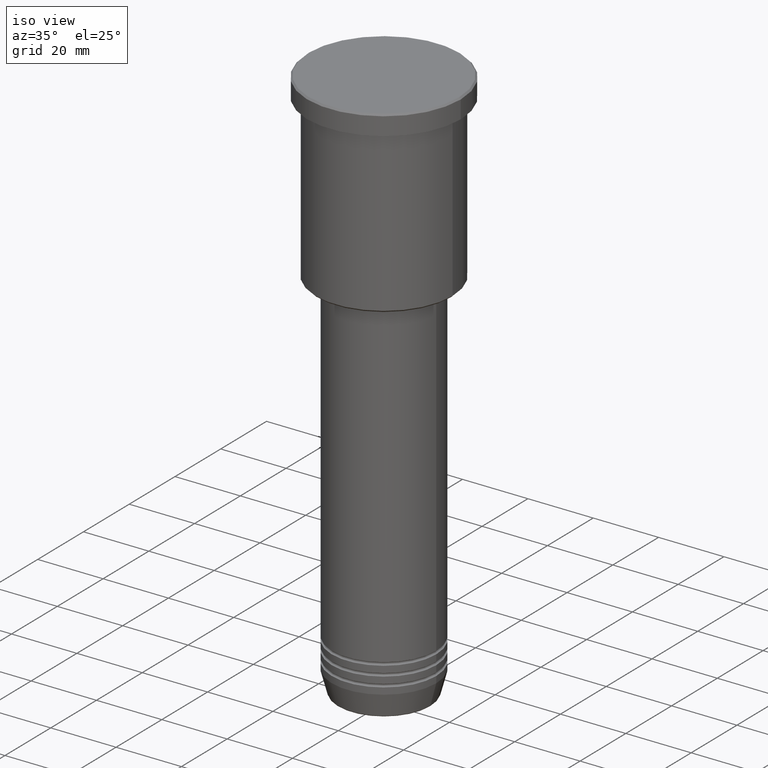
[diagram: clean part render]
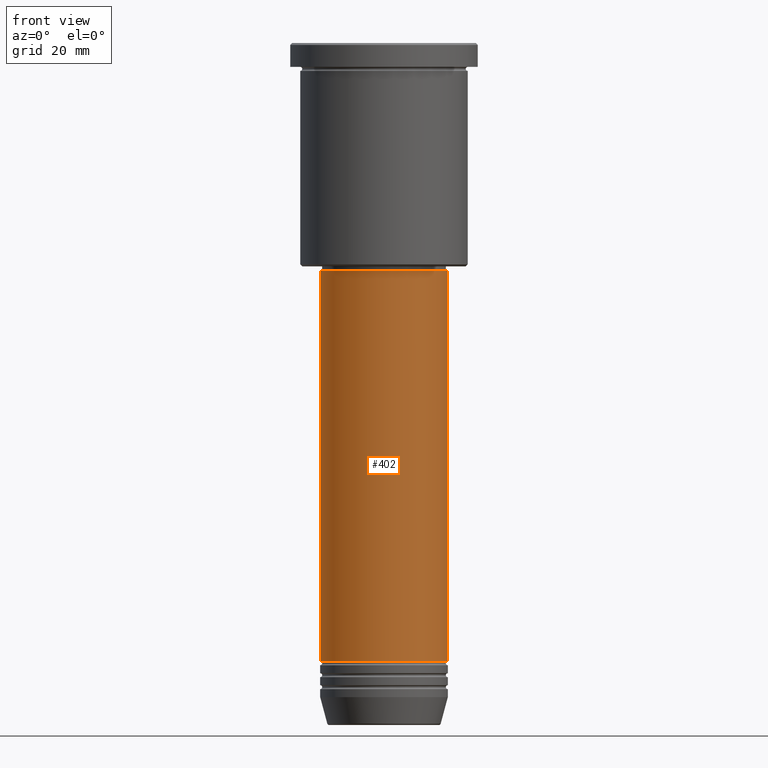
[diagram: tour spotlight — one face highlighted and labeled with its STEP entity id]
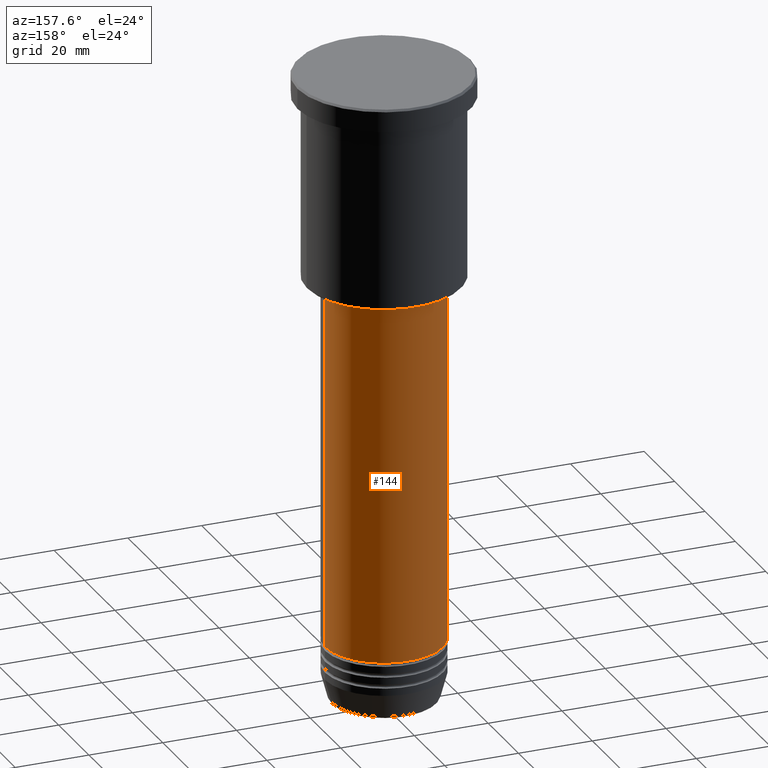
[diagram: tour spotlight — one face highlighted and labeled with its STEP entity id]
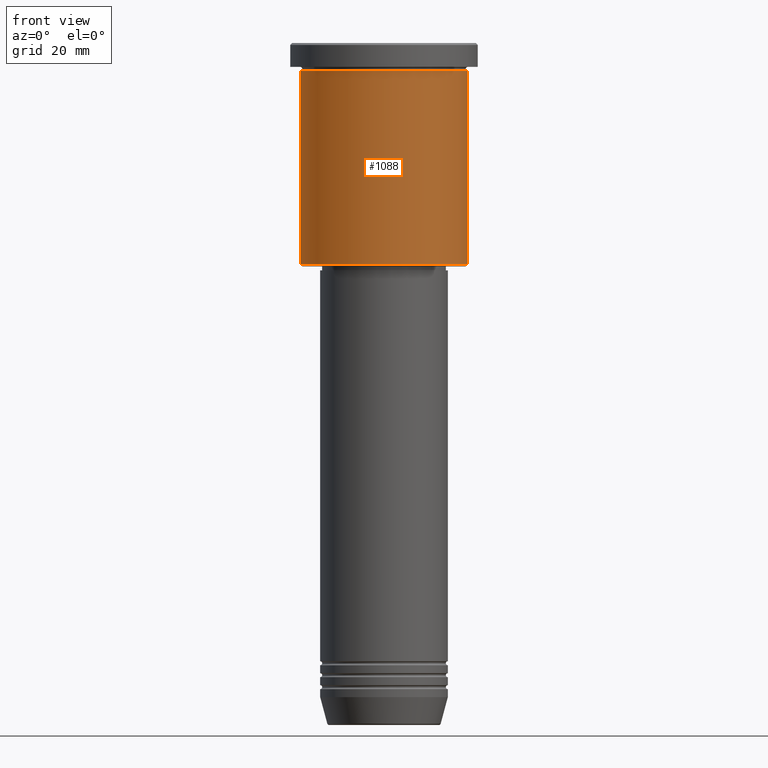
[diagram: tour spotlight — one face highlighted and labeled with its STEP entity id]
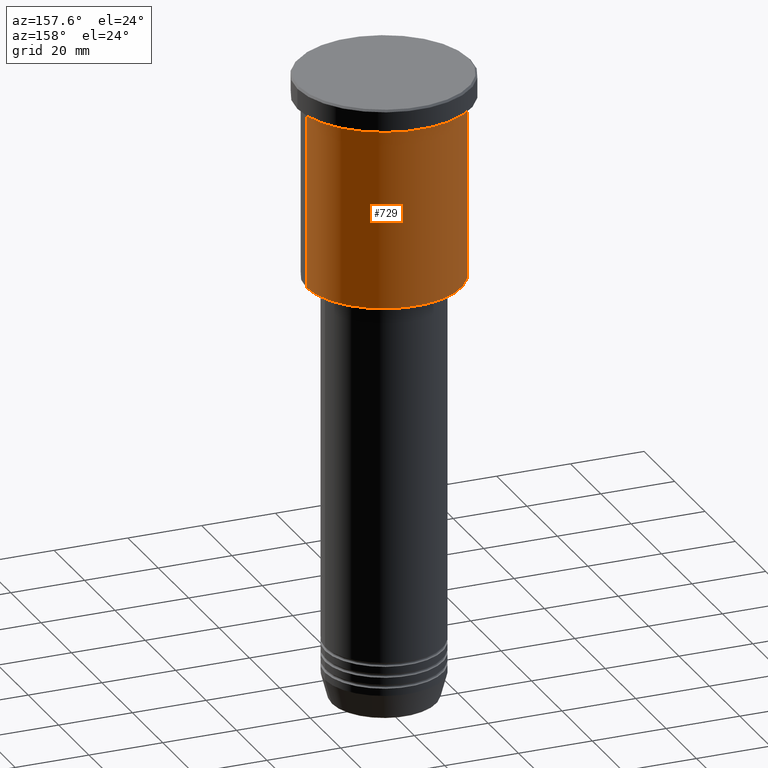
[diagram: tour spotlight — one face highlighted and labeled with its STEP entity id]
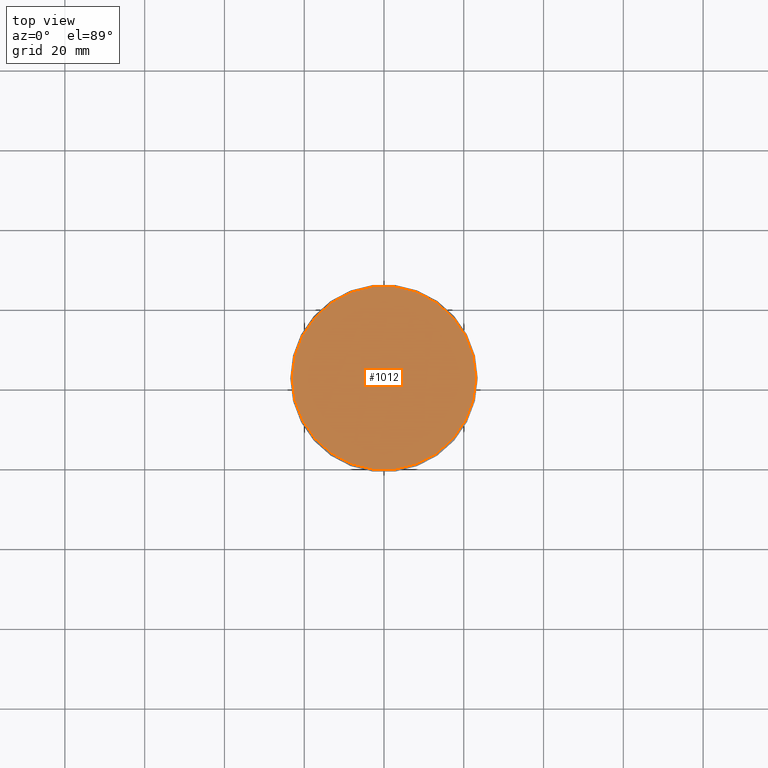
[diagram: tour spotlight — one face highlighted and labeled with its STEP entity id]
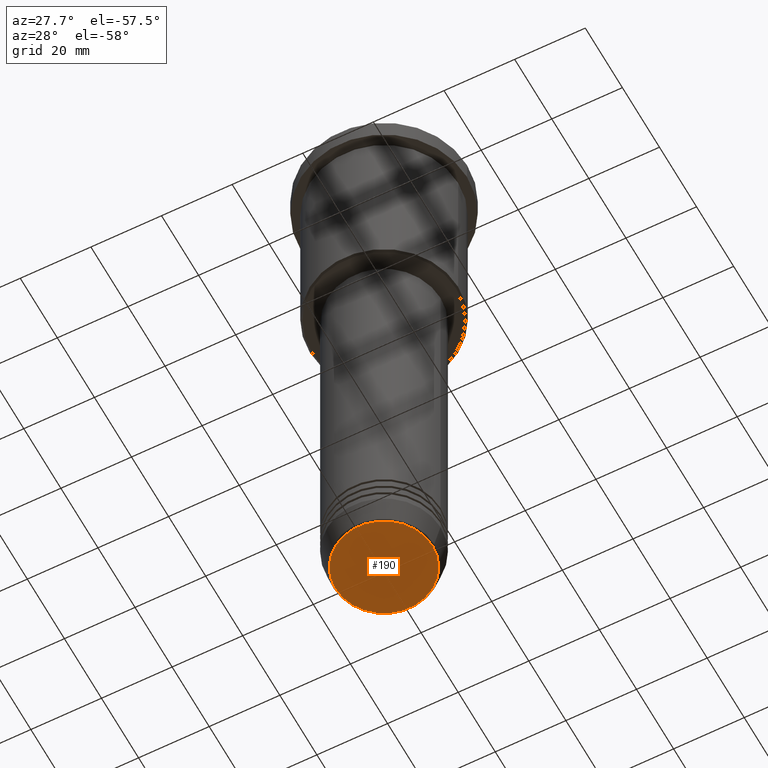
[diagram: tour spotlight — one face highlighted and labeled with its STEP entity id]
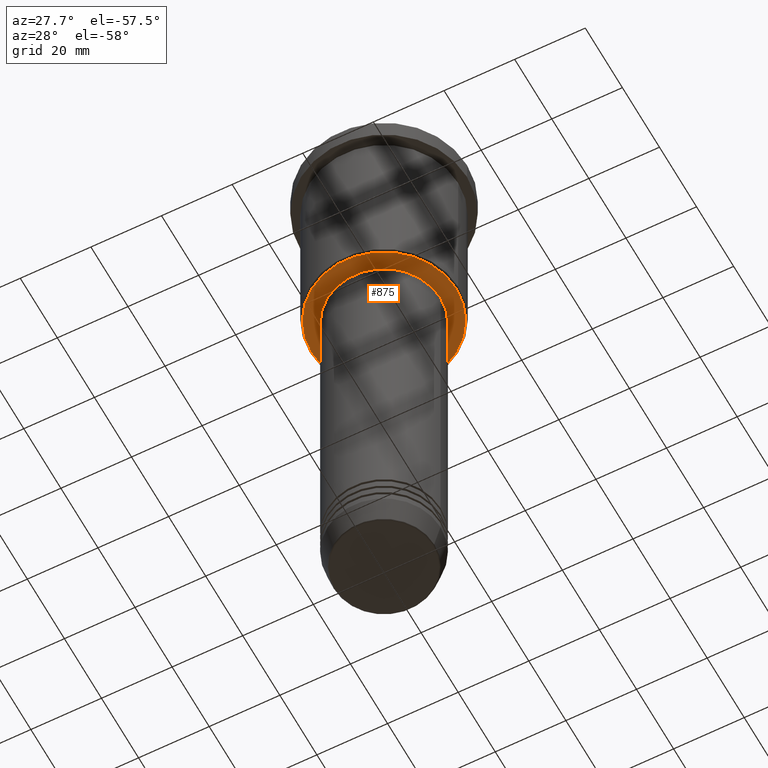
[diagram: tour spotlight — one face highlighted and labeled with its STEP entity id]
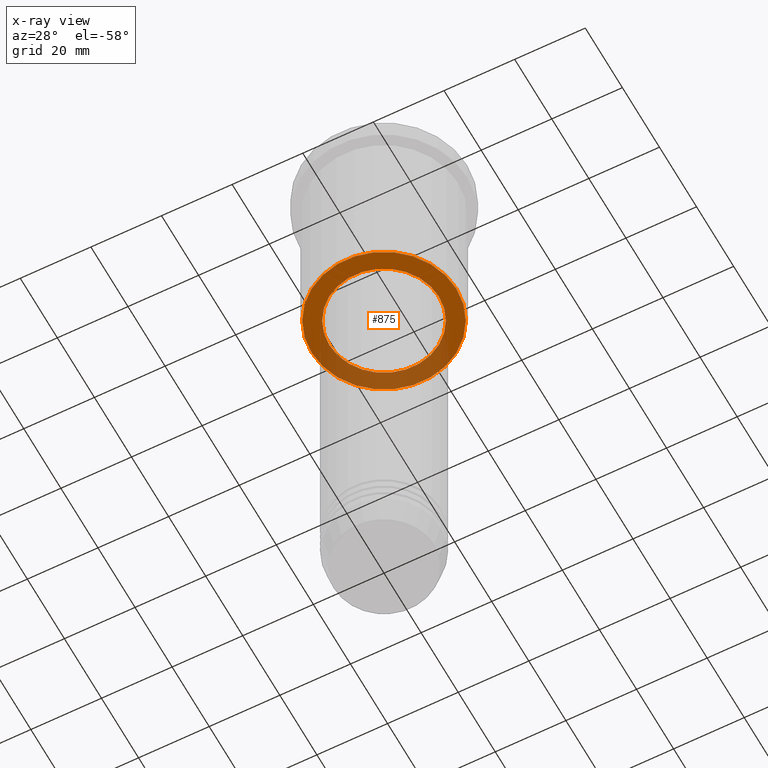
[diagram: x-ray of the same camera — body ghosted, this tour face saturated]
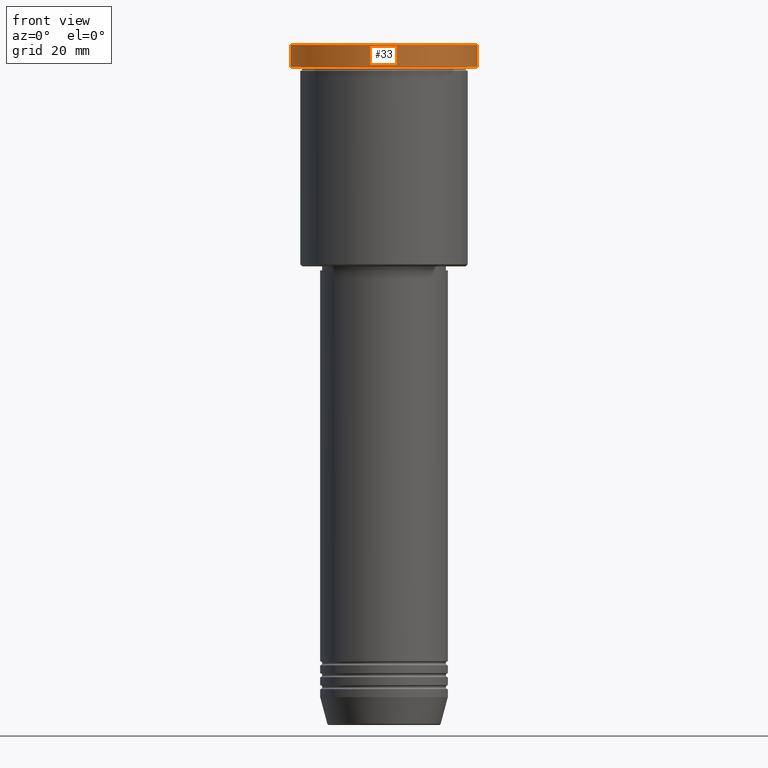
[diagram: tour spotlight — one face highlighted and labeled with its STEP entity id]
A machine part: a face-by-face anatomy tour. The part has 43 B-rep faces; the first image is the clean iso view, then the 8 largest visible faces are spotlighted one at a time (largest first), each with its STEP entity span.

Face 1 — front view, entity #402. In plain terms, the highlighted cylindrical surface (partial cylindrical patch) has radius 16 mm, axis along (-0, -0, 1).
Definition (entity closure, byte-faithful):
#9 = DIRECTION ( 'NONE',  ( -0.000000000000000000, -0.000000000000000000, 1.000000000000000000 ) ) ;
#23 = CARTESIAN_POINT ( 'NONE',  ( 16.00000000000000000, 0.000000000000000000, 0.000000000000000000 ) ) ;
#38 = VERTEX_POINT ( 'NONE', #364 ) ;
#44 = CIRCLE ( 'NONE', #1141, 16.00000000000000000 ) ;
#86 = EDGE_CURVE ( 'NONE', #415, #38, #1036, .T. ) ;
#89 = DIRECTION ( 'NONE',  ( -0.000000000000000000, -0.000000000000000000, 1.000000000000000000 ) ) ;
#117 = EDGE_CURVE ( 'NONE', #169, #38, #394, .T. ) ;
#169 = VERTEX_POINT ( 'NONE', #960 ) ;
#193 = FACE_OUTER_BOUND ( 'NONE', #848, .T. ) ;
#229 = LINE ( 'NONE', #593, #985 ) ;
#288 = ORIENTED_EDGE ( 'NONE', *, *, #442, .F. ) ;
#311 = AXIS2_PLACEMENT_3D ( 'NONE', #633, #89, #453 ) ;
#326 = EDGE_CURVE ( 'NONE', #1001, #169, #44, .T. ) ;
#347 = ORIENTED_EDGE ( 'NONE', *, *, #117, .T. ) ;
#364 = CARTESIAN_POINT ( 'NONE',  ( 16.00000000000000000, 0.000000000000000000, -57.00000000000000000 ) ) ;
#377 = CARTESIAN_POINT ( 'NONE',  ( 0.000000000000000000, 0.000000000000000000, -57.00000000000000000 ) ) ;
#384 = CARTESIAN_POINT ( 'NONE',  ( 0.000000000000000000, 0.000000000000000000, -154.9999999999999716 ) ) ;
#394 = LINE ( 'NONE', #23, #628 ) ;
#402 = ADVANCED_FACE ( 'NONE', ( #193 ), #553, .T. ) ;
#414 = DIRECTION ( 'NONE',  ( 1.000000000000000000, 0.000000000000000000, 0.000000000000000000 ) ) ;
#415 = VERTEX_POINT ( 'NONE', #465 ) ;
#442 = EDGE_CURVE ( 'NONE', #1001, #415, #229, .T. ) ;
#453 = DIRECTION ( 'NONE',  ( 1.000000000000000000, 0.000000000000000000, 0.000000000000000000 ) ) ;
#465 = CARTESIAN_POINT ( 'NONE',  ( -16.00000000000000000, 1.959434878635765131E-15, -57.00000000000000000 ) ) ;
#551 = ORIENTED_EDGE ( 'NONE', *, *, #326, .T. ) ;
#553 = CYLINDRICAL_SURFACE ( 'NONE', #311, 16.00000000000000000 ) ;
#593 = CARTESIAN_POINT ( 'NONE',  ( -16.00000000000000000, 1.959434878635765131E-15, 0.000000000000000000 ) ) ;
#628 = VECTOR ( 'NONE', #943, 1000.000000000000000 ) ;
#633 = CARTESIAN_POINT ( 'NONE',  ( 0.000000000000000000, 0.000000000000000000, 0.000000000000000000 ) ) ;
#678 = DIRECTION ( 'NONE',  ( -0.000000000000000000, -0.000000000000000000, 1.000000000000000000 ) ) ;
#686 = ORIENTED_EDGE ( 'NONE', *, *, #86, .F. ) ;
#688 = CARTESIAN_POINT ( 'NONE',  ( -16.00000000000000000, 1.959434878635765131E-15, -154.9999999999999716 ) ) ;
#848 = EDGE_LOOP ( 'NONE', ( #288, #551, #347, #686 ) ) ;
#943 = DIRECTION ( 'NONE',  ( -0.000000000000000000, -0.000000000000000000, 1.000000000000000000 ) ) ;
#945 = DIRECTION ( 'NONE',  ( -0.000000000000000000, -0.000000000000000000, 1.000000000000000000 ) ) ;
#948 = AXIS2_PLACEMENT_3D ( 'NONE', #377, #945, #414 ) ;
#960 = CARTESIAN_POINT ( 'NONE',  ( 16.00000000000000000, 0.000000000000000000, -154.9999999999999716 ) ) ;
#985 = VECTOR ( 'NONE', #678, 1000.000000000000000 ) ;
#1001 = VERTEX_POINT ( 'NONE', #688 ) ;
#1036 = CIRCLE ( 'NONE', #948, 16.00000000000000000 ) ;
#1110 = DIRECTION ( 'NONE',  ( 1.000000000000000000, 0.000000000000000000, 0.000000000000000000 ) ) ;
#1141 = AXIS2_PLACEMENT_3D ( 'NONE', #384, #9, #1110 ) ;

Face 2 — auxiliary view, entity #144. In plain terms, the highlighted cylindrical surface (partial cylindrical patch) has radius 16 mm, axis along (-0, -0, 1).
Definition (entity closure, byte-faithful):
#23 = CARTESIAN_POINT ( 'NONE',  ( 16.00000000000000000, 0.000000000000000000, 0.000000000000000000 ) ) ;
#38 = VERTEX_POINT ( 'NONE', #364 ) ;
#75 = FACE_OUTER_BOUND ( 'NONE', #266, .T. ) ;
#117 = EDGE_CURVE ( 'NONE', #169, #38, #394, .T. ) ;
#144 = ADVANCED_FACE ( 'NONE', ( #75 ), #625, .T. ) ;
#169 = VERTEX_POINT ( 'NONE', #960 ) ;
#186 = CARTESIAN_POINT ( 'NONE',  ( 0.000000000000000000, 0.000000000000000000, -57.00000000000000000 ) ) ;
#229 = LINE ( 'NONE', #593, #985 ) ;
#266 = EDGE_LOOP ( 'NONE', ( #680, #1137, #791, #1083 ) ) ;
#272 = DIRECTION ( 'NONE',  ( -0.000000000000000000, -0.000000000000000000, 1.000000000000000000 ) ) ;
#335 = AXIS2_PLACEMENT_3D ( 'NONE', #186, #1183, #365 ) ;
#352 = CARTESIAN_POINT ( 'NONE',  ( 0.000000000000000000, 0.000000000000000000, 0.000000000000000000 ) ) ;
#364 = CARTESIAN_POINT ( 'NONE',  ( 16.00000000000000000, 0.000000000000000000, -57.00000000000000000 ) ) ;
#365 = DIRECTION ( 'NONE',  ( 1.000000000000000000, 0.000000000000000000, 0.000000000000000000 ) ) ;
#393 = DIRECTION ( 'NONE',  ( -0.000000000000000000, -0.000000000000000000, 1.000000000000000000 ) ) ;
#394 = LINE ( 'NONE', #23, #628 ) ;
#415 = VERTEX_POINT ( 'NONE', #465 ) ;
#442 = EDGE_CURVE ( 'NONE', #1001, #415, #229, .T. ) ;
#465 = CARTESIAN_POINT ( 'NONE',  ( -16.00000000000000000, 1.959434878635765131E-15, -57.00000000000000000 ) ) ;
#556 = DIRECTION ( 'NONE',  ( 1.000000000000000000, 0.000000000000000000, 0.000000000000000000 ) ) ;
#593 = CARTESIAN_POINT ( 'NONE',  ( -16.00000000000000000, 1.959434878635765131E-15, 0.000000000000000000 ) ) ;
#623 = CIRCLE ( 'NONE', #335, 16.00000000000000000 ) ;
#625 = CYLINDRICAL_SURFACE ( 'NONE', #808, 16.00000000000000000 ) ;
#628 = VECTOR ( 'NONE', #943, 1000.000000000000000 ) ;
#649 = DIRECTION ( 'NONE',  ( 1.000000000000000000, 0.000000000000000000, 0.000000000000000000 ) ) ;
#678 = DIRECTION ( 'NONE',  ( -0.000000000000000000, -0.000000000000000000, 1.000000000000000000 ) ) ;
#680 = ORIENTED_EDGE ( 'NONE', *, *, #734, .T. ) ;
#688 = CARTESIAN_POINT ( 'NONE',  ( -16.00000000000000000, 1.959434878635765131E-15, -154.9999999999999716 ) ) ;
#734 = EDGE_CURVE ( 'NONE', #169, #1001, #1070, .T. ) ;
#791 = ORIENTED_EDGE ( 'NONE', *, *, #796, .F. ) ;
#796 = EDGE_CURVE ( 'NONE', #38, #415, #623, .T. ) ;
#808 = AXIS2_PLACEMENT_3D ( 'NONE', #352, #393, #649 ) ;
#943 = DIRECTION ( 'NONE',  ( -0.000000000000000000, -0.000000000000000000, 1.000000000000000000 ) ) ;
#960 = CARTESIAN_POINT ( 'NONE',  ( 16.00000000000000000, 0.000000000000000000, -154.9999999999999716 ) ) ;
#985 = VECTOR ( 'NONE', #678, 1000.000000000000000 ) ;
#999 = CARTESIAN_POINT ( 'NONE',  ( 0.000000000000000000, 0.000000000000000000, -154.9999999999999716 ) ) ;
#1001 = VERTEX_POINT ( 'NONE', #688 ) ;
#1028 = AXIS2_PLACEMENT_3D ( 'NONE', #999, #272, #556 ) ;
#1070 = CIRCLE ( 'NONE', #1028, 16.00000000000000000 ) ;
#1083 = ORIENTED_EDGE ( 'NONE', *, *, #117, .F. ) ;
#1137 = ORIENTED_EDGE ( 'NONE', *, *, #442, .T. ) ;
#1183 = DIRECTION ( 'NONE',  ( -0.000000000000000000, -0.000000000000000000, 1.000000000000000000 ) ) ;

Face 3 — front view, entity #1088. In plain terms, the highlighted cylindrical surface (partial cylindrical patch) has radius 21 mm, axis along (-0, -0, 1).
Definition (entity closure, byte-faithful):
#13 = ORIENTED_EDGE ( 'NONE', *, *, #182, .T. ) ;
#68 = CYLINDRICAL_SURFACE ( 'NONE', #406, 21.00000000000000000 ) ;
#70 = EDGE_CURVE ( 'NONE', #524, #534, #275, .T. ) ;
#72 = VECTOR ( 'NONE', #509, 1000.000000000000000 ) ;
#73 = LINE ( 'NONE', #146, #72 ) ;
#94 = DIRECTION ( 'NONE',  ( 1.000000000000000000, 0.000000000000000000, 0.000000000000000000 ) ) ;
#95 = ORIENTED_EDGE ( 'NONE', *, *, #70, .F. ) ;
#146 = CARTESIAN_POINT ( 'NONE',  ( 21.00000000000000000, 0.000000000000000000, 0.000000000000000000 ) ) ;
#159 = DIRECTION ( 'NONE',  ( -1.000000000000000000, 0.000000000000000000, 0.000000000000000000 ) ) ;
#182 = EDGE_CURVE ( 'NONE', #395, #534, #73, .T. ) ;
#252 = CARTESIAN_POINT ( 'NONE',  ( -21.00000000000000000, 2.571758278209441661E-15, 0.000000000000000000 ) ) ;
#263 = DIRECTION ( 'NONE',  ( 1.000000000000000000, 0.000000000000000000, 0.000000000000000000 ) ) ;
#269 = AXIS2_PLACEMENT_3D ( 'NONE', #973, #902, #159 ) ;
#275 = CIRCLE ( 'NONE', #466, 21.00000000000000000 ) ;
#337 = CARTESIAN_POINT ( 'NONE',  ( -21.00000000000000000, 2.571758278209441661E-15, -55.49999999999996447 ) ) ;
#388 = VECTOR ( 'NONE', #1160, 1000.000000000000000 ) ;
#395 = VERTEX_POINT ( 'NONE', #648 ) ;
#406 = AXIS2_PLACEMENT_3D ( 'NONE', #1154, #693, #263 ) ;
#466 = AXIS2_PLACEMENT_3D ( 'NONE', #750, #820, #94 ) ;
#509 = DIRECTION ( 'NONE',  ( -0.000000000000000000, -0.000000000000000000, 1.000000000000000000 ) ) ;
#524 = VERTEX_POINT ( 'NONE', #1121 ) ;
#534 = VERTEX_POINT ( 'NONE', #770 ) ;
#564 = VERTEX_POINT ( 'NONE', #337 ) ;
#605 = ORIENTED_EDGE ( 'NONE', *, *, #1119, .F. ) ;
#648 = CARTESIAN_POINT ( 'NONE',  ( 21.00000000000000000, 0.000000000000000000, -55.49999999999996447 ) ) ;
#676 = EDGE_CURVE ( 'NONE', #564, #395, #838, .T. ) ;
#693 = DIRECTION ( 'NONE',  ( -0.000000000000000000, -0.000000000000000000, 1.000000000000000000 ) ) ;
#705 = EDGE_LOOP ( 'NONE', ( #605, #709, #13, #95 ) ) ;
#709 = ORIENTED_EDGE ( 'NONE', *, *, #676, .T. ) ;
#750 = CARTESIAN_POINT ( 'NONE',  ( 0.000000000000000000, 0.000000000000000000, -6.999999999999994671 ) ) ;
#770 = CARTESIAN_POINT ( 'NONE',  ( 21.00000000000000000, 0.000000000000000000, -6.999999999999994671 ) ) ;
#820 = DIRECTION ( 'NONE',  ( -0.000000000000000000, -0.000000000000000000, 1.000000000000000000 ) ) ;
#838 = CIRCLE ( 'NONE', #269, 21.00000000000000000 ) ;
#902 = DIRECTION ( 'NONE',  ( -0.000000000000000000, -0.000000000000000000, 1.000000000000000000 ) ) ;
#973 = CARTESIAN_POINT ( 'NONE',  ( 0.000000000000000000, 0.000000000000000000, -55.49999999999996447 ) ) ;
#984 = LINE ( 'NONE', #252, #388 ) ;
#1076 = FACE_OUTER_BOUND ( 'NONE', #705, .T. ) ;
#1088 = ADVANCED_FACE ( 'NONE', ( #1076 ), #68, .T. ) ;
#1119 = EDGE_CURVE ( 'NONE', #564, #524, #984, .T. ) ;
#1121 = CARTESIAN_POINT ( 'NONE',  ( -21.00000000000000000, 2.571758278209441661E-15, -6.999999999999994671 ) ) ;
#1154 = CARTESIAN_POINT ( 'NONE',  ( 0.000000000000000000, 0.000000000000000000, 0.000000000000000000 ) ) ;
#1160 = DIRECTION ( 'NONE',  ( -0.000000000000000000, -0.000000000000000000, 1.000000000000000000 ) ) ;

Face 4 — auxiliary view, entity #729. In plain terms, the highlighted cylindrical surface (partial cylindrical patch) has radius 21 mm, axis along (-0, -0, 1).
Definition (entity closure, byte-faithful):
#72 = VECTOR ( 'NONE', #509, 1000.000000000000000 ) ;
#73 = LINE ( 'NONE', #146, #72 ) ;
#87 = DIRECTION ( 'NONE',  ( 1.000000000000000000, 0.000000000000000000, 0.000000000000000000 ) ) ;
#98 = AXIS2_PLACEMENT_3D ( 'NONE', #363, #715, #126 ) ;
#126 = DIRECTION ( 'NONE',  ( -1.000000000000000000, 0.000000000000000000, 0.000000000000000000 ) ) ;
#146 = CARTESIAN_POINT ( 'NONE',  ( 21.00000000000000000, 0.000000000000000000, 0.000000000000000000 ) ) ;
#167 = FACE_OUTER_BOUND ( 'NONE', #1089, .T. ) ;
#182 = EDGE_CURVE ( 'NONE', #395, #534, #73, .T. ) ;
#217 = AXIS2_PLACEMENT_3D ( 'NONE', #889, #803, #1078 ) ;
#252 = CARTESIAN_POINT ( 'NONE',  ( -21.00000000000000000, 2.571758278209441661E-15, 0.000000000000000000 ) ) ;
#285 = ORIENTED_EDGE ( 'NONE', *, *, #606, .F. ) ;
#337 = CARTESIAN_POINT ( 'NONE',  ( -21.00000000000000000, 2.571758278209441661E-15, -55.49999999999996447 ) ) ;
#363 = CARTESIAN_POINT ( 'NONE',  ( 0.000000000000000000, 0.000000000000000000, -55.49999999999996447 ) ) ;
#388 = VECTOR ( 'NONE', #1160, 1000.000000000000000 ) ;
#395 = VERTEX_POINT ( 'NONE', #648 ) ;
#400 = ORIENTED_EDGE ( 'NONE', *, *, #182, .F. ) ;
#462 = DIRECTION ( 'NONE',  ( -0.000000000000000000, -0.000000000000000000, 1.000000000000000000 ) ) ;
#468 = CYLINDRICAL_SURFACE ( 'NONE', #697, 21.00000000000000000 ) ;
#509 = DIRECTION ( 'NONE',  ( -0.000000000000000000, -0.000000000000000000, 1.000000000000000000 ) ) ;
#524 = VERTEX_POINT ( 'NONE', #1121 ) ;
#534 = VERTEX_POINT ( 'NONE', #770 ) ;
#564 = VERTEX_POINT ( 'NONE', #337 ) ;
#606 = EDGE_CURVE ( 'NONE', #534, #524, #723, .T. ) ;
#648 = CARTESIAN_POINT ( 'NONE',  ( 21.00000000000000000, 0.000000000000000000, -55.49999999999996447 ) ) ;
#697 = AXIS2_PLACEMENT_3D ( 'NONE', #1094, #462, #87 ) ;
#715 = DIRECTION ( 'NONE',  ( -0.000000000000000000, -0.000000000000000000, 1.000000000000000000 ) ) ;
#723 = CIRCLE ( 'NONE', #217, 21.00000000000000000 ) ;
#729 = ADVANCED_FACE ( 'NONE', ( #167 ), #468, .T. ) ;
#770 = CARTESIAN_POINT ( 'NONE',  ( 21.00000000000000000, 0.000000000000000000, -6.999999999999994671 ) ) ;
#777 = ORIENTED_EDGE ( 'NONE', *, *, #1155, .T. ) ;
#803 = DIRECTION ( 'NONE',  ( -0.000000000000000000, -0.000000000000000000, 1.000000000000000000 ) ) ;
#889 = CARTESIAN_POINT ( 'NONE',  ( 0.000000000000000000, 0.000000000000000000, -6.999999999999994671 ) ) ;
#984 = LINE ( 'NONE', #252, #388 ) ;
#989 = CIRCLE ( 'NONE', #98, 21.00000000000000000 ) ;
#1078 = DIRECTION ( 'NONE',  ( 1.000000000000000000, 0.000000000000000000, 0.000000000000000000 ) ) ;
#1089 = EDGE_LOOP ( 'NONE', ( #777, #1120, #285, #400 ) ) ;
#1094 = CARTESIAN_POINT ( 'NONE',  ( 0.000000000000000000, 0.000000000000000000, 0.000000000000000000 ) ) ;
#1119 = EDGE_CURVE ( 'NONE', #564, #524, #984, .T. ) ;
#1120 = ORIENTED_EDGE ( 'NONE', *, *, #1119, .T. ) ;
#1121 = CARTESIAN_POINT ( 'NONE',  ( -21.00000000000000000, 2.571758278209441661E-15, -6.999999999999994671 ) ) ;
#1155 = EDGE_CURVE ( 'NONE', #395, #564, #989, .T. ) ;
#1160 = DIRECTION ( 'NONE',  ( -0.000000000000000000, -0.000000000000000000, 1.000000000000000000 ) ) ;

Face 5 — top view, entity #1012. In plain terms, the highlighted planar face has unit normal (0, -0, 1).
Definition (entity closure, byte-faithful):
#45 = DIRECTION ( 'NONE',  ( 1.000000000000000000, 0.000000000000000000, 0.000000000000000000 ) ) ;
#83 = DIRECTION ( 'NONE',  ( 0.000000000000000000, -0.000000000000000000, 1.000000000000000000 ) ) ;
#154 = CARTESIAN_POINT ( 'NONE',  ( -22.99999999999999645, 0.000000000000000000, 0.000000000000000000 ) ) ;
#228 = DIRECTION ( 'NONE',  ( -0.000000000000000000, -0.000000000000000000, 1.000000000000000000 ) ) ;
#233 = EDGE_CURVE ( 'NONE', #257, #655, #260, .T. ) ;
#237 = AXIS2_PLACEMENT_3D ( 'NONE', #324, #228, #45 ) ;
#257 = VERTEX_POINT ( 'NONE', #732 ) ;
#260 = CIRCLE ( 'NONE', #300, 22.99999999999999645 ) ;
#300 = AXIS2_PLACEMENT_3D ( 'NONE', #1170, #703, #413 ) ;
#324 = CARTESIAN_POINT ( 'NONE',  ( 0.000000000000000000, 0.000000000000000000, 0.000000000000000000 ) ) ;
#339 = ORIENTED_EDGE ( 'NONE', *, *, #233, .T. ) ;
#354 = FACE_OUTER_BOUND ( 'NONE', #1143, .T. ) ;
#413 = DIRECTION ( 'NONE',  ( 1.000000000000000000, 0.000000000000000000, 0.000000000000000000 ) ) ;
#481 = AXIS2_PLACEMENT_3D ( 'NONE', #900, #83, #797 ) ;
#655 = VERTEX_POINT ( 'NONE', #154 ) ;
#703 = DIRECTION ( 'NONE',  ( -0.000000000000000000, -0.000000000000000000, 1.000000000000000000 ) ) ;
#719 = CIRCLE ( 'NONE', #237, 22.99999999999999645 ) ;
#732 = CARTESIAN_POINT ( 'NONE',  ( 22.99999999999999645, 2.847303808017596139E-15, 0.000000000000000000 ) ) ;
#788 = PLANE ( 'NONE',  #481 ) ;
#797 = DIRECTION ( 'NONE',  ( 1.000000000000000000, 0.000000000000000000, 0.000000000000000000 ) ) ;
#900 = CARTESIAN_POINT ( 'NONE',  ( 0.000000000000000000, 0.000000000000000000, 0.000000000000000000 ) ) ;
#920 = ORIENTED_EDGE ( 'NONE', *, *, #964, .T. ) ;
#964 = EDGE_CURVE ( 'NONE', #655, #257, #719, .T. ) ;
#1012 = ADVANCED_FACE ( 'NONE', ( #354 ), #788, .T. ) ;
#1143 = EDGE_LOOP ( 'NONE', ( #920, #339 ) ) ;
#1170 = CARTESIAN_POINT ( 'NONE',  ( 0.000000000000000000, 0.000000000000000000, 0.000000000000000000 ) ) ;

Face 6 — auxiliary view, entity #190. In plain terms, the highlighted planar face has unit normal (0, -0, 1).
Definition (entity closure, byte-faithful):
#7 = CARTESIAN_POINT ( 'NONE',  ( 0.000000000000000000, 0.000000000000000000, -170.9999999999999716 ) ) ;
#24 = CIRCLE ( 'NONE', #1151, 13.74069215899266538 ) ;
#62 = EDGE_CURVE ( 'NONE', #247, #482, #447, .T. ) ;
#104 = DIRECTION ( 'NONE',  ( 1.000000000000000000, 0.000000000000000000, 0.000000000000000000 ) ) ;
#190 = ADVANCED_FACE ( 'NONE', ( #769 ), #781, .F. ) ;
#219 = AXIS2_PLACEMENT_3D ( 'NONE', #1062, #1147, #226 ) ;
#222 = EDGE_LOOP ( 'NONE', ( #858, #238 ) ) ;
#226 = DIRECTION ( 'NONE',  ( 1.000000000000000000, 0.000000000000000000, 0.000000000000000000 ) ) ;
#238 = ORIENTED_EDGE ( 'NONE', *, *, #789, .T. ) ;
#247 = VERTEX_POINT ( 'NONE', #286 ) ;
#286 = CARTESIAN_POINT ( 'NONE',  ( 13.74069215899266538, 0.000000000000000000, -170.9999999999999716 ) ) ;
#297 = DIRECTION ( 'NONE',  ( 0.000000000000000000, 0.000000000000000000, -1.000000000000000000 ) ) ;
#375 = AXIS2_PLACEMENT_3D ( 'NONE', #847, #297, #104 ) ;
#447 = CIRCLE ( 'NONE', #375, 13.74069215899266538 ) ;
#482 = VERTEX_POINT ( 'NONE', #1027 ) ;
#769 = FACE_OUTER_BOUND ( 'NONE', #222, .T. ) ;
#781 = PLANE ( 'NONE',  #219 ) ;
#789 = EDGE_CURVE ( 'NONE', #482, #247, #24, .T. ) ;
#813 = DIRECTION ( 'NONE',  ( 1.000000000000000000, 0.000000000000000000, 0.000000000000000000 ) ) ;
#826 = DIRECTION ( 'NONE',  ( 0.000000000000000000, 0.000000000000000000, -1.000000000000000000 ) ) ;
#847 = CARTESIAN_POINT ( 'NONE',  ( 0.000000000000000000, 0.000000000000000000, -170.9999999999999716 ) ) ;
#858 = ORIENTED_EDGE ( 'NONE', *, *, #62, .T. ) ;
#1027 = CARTESIAN_POINT ( 'NONE',  ( -13.74069215899266538, 1.712322416342416577E-15, -170.9999999999999716 ) ) ;
#1062 = CARTESIAN_POINT ( 'NONE',  ( 0.000000000000000000, 0.000000000000000000, -170.9999999999999716 ) ) ;
#1147 = DIRECTION ( 'NONE',  ( 0.000000000000000000, -0.000000000000000000, 1.000000000000000000 ) ) ;
#1151 = AXIS2_PLACEMENT_3D ( 'NONE', #7, #826, #813 ) ;

Face 7 — auxiliary view, entity #875. An x-ray twin of the same camera follows (body ghosted, this face saturated) — the face is partly hidden behind the body. In plain terms, the highlighted planar face has unit normal (0, 0, -1).
Definition (entity closure, byte-faithful):
#41 = DIRECTION ( 'NONE',  ( 0.000000000000000000, 0.000000000000000000, -1.000000000000000000 ) ) ;
#46 = AXIS2_PLACEMENT_3D ( 'NONE', #522, #348, #1069 ) ;
#90 = EDGE_LOOP ( 'NONE', ( #1009, #301 ) ) ;
#135 = PLANE ( 'NONE',  #765 ) ;
#141 = CIRCLE ( 'NONE', #800, 15.50000000000000000 ) ;
#191 = DIRECTION ( 'NONE',  ( 0.000000000000000000, 0.000000000000000000, -1.000000000000000000 ) ) ;
#194 = AXIS2_PLACEMENT_3D ( 'NONE', #996, #191, #622 ) ;
#255 = CIRCLE ( 'NONE', #1004, 15.50000000000000000 ) ;
#282 = VERTEX_POINT ( 'NONE', #823 ) ;
#301 = ORIENTED_EDGE ( 'NONE', *, *, #717, .T. ) ;
#328 = CARTESIAN_POINT ( 'NONE',  ( 0.000000000000000000, 0.000000000000000000, -55.99999999999999289 ) ) ;
#348 = DIRECTION ( 'NONE',  ( 0.000000000000000000, 0.000000000000000000, -1.000000000000000000 ) ) ;
#369 = CIRCLE ( 'NONE', #194, 20.49999999999998934 ) ;
#486 = EDGE_LOOP ( 'NONE', ( #692, #1096 ) ) ;
#495 = DIRECTION ( 'NONE',  ( -0.000000000000000000, -0.000000000000000000, 1.000000000000000000 ) ) ;
#503 = DIRECTION ( 'NONE',  ( -0.000000000000000000, -0.000000000000000000, 1.000000000000000000 ) ) ;
#508 = DIRECTION ( 'NONE',  ( 1.000000000000000000, 0.000000000000000000, 0.000000000000000000 ) ) ;
#521 = CIRCLE ( 'NONE', #46, 20.49999999999998934 ) ;
#522 = CARTESIAN_POINT ( 'NONE',  ( 0.000000000000000000, 0.000000000000000000, -55.99999999999999289 ) ) ;
#526 = CARTESIAN_POINT ( 'NONE',  ( -15.50000000000000000, 1.898202538678397557E-15, -55.99999999999999289 ) ) ;
#587 = CARTESIAN_POINT ( 'NONE',  ( 0.000000000000000000, 21.00000000000000000, -55.99999999999999289 ) ) ;
#622 = DIRECTION ( 'NONE',  ( -1.000000000000000000, 0.000000000000000000, 0.000000000000000000 ) ) ;
#653 = CARTESIAN_POINT ( 'NONE',  ( 15.50000000000000000, 0.000000000000000000, -55.99999999999999289 ) ) ;
#675 = FACE_BOUND ( 'NONE', #486, .T. ) ;
#692 = ORIENTED_EDGE ( 'NONE', *, *, #908, .T. ) ;
#717 = EDGE_CURVE ( 'NONE', #983, #282, #521, .T. ) ;
#743 = EDGE_CURVE ( 'NONE', #282, #983, #369, .T. ) ;
#762 = DIRECTION ( 'NONE',  ( 1.000000000000000000, 0.000000000000000000, 0.000000000000000000 ) ) ;
#765 = AXIS2_PLACEMENT_3D ( 'NONE', #587, #41, #857 ) ;
#800 = AXIS2_PLACEMENT_3D ( 'NONE', #328, #503, #762 ) ;
#823 = CARTESIAN_POINT ( 'NONE',  ( 20.49999999999998934, 0.000000000000000000, -55.99999999999999289 ) ) ;
#850 = FACE_OUTER_BOUND ( 'NONE', #90, .T. ) ;
#857 = DIRECTION ( 'NONE',  ( -1.000000000000000000, 0.000000000000000000, -0.000000000000000000 ) ) ;
#875 = ADVANCED_FACE ( 'NONE', ( #850, #675 ), #135, .T. ) ;
#885 = VERTEX_POINT ( 'NONE', #653 ) ;
#898 = EDGE_CURVE ( 'NONE', #1038, #885, #255, .T. ) ;
#908 = EDGE_CURVE ( 'NONE', #885, #1038, #141, .T. ) ;
#936 = CARTESIAN_POINT ( 'NONE',  ( 0.000000000000000000, 0.000000000000000000, -55.99999999999999289 ) ) ;
#983 = VERTEX_POINT ( 'NONE', #1125 ) ;
#996 = CARTESIAN_POINT ( 'NONE',  ( 0.000000000000000000, 0.000000000000000000, -55.99999999999999289 ) ) ;
#1004 = AXIS2_PLACEMENT_3D ( 'NONE', #936, #495, #508 ) ;
#1009 = ORIENTED_EDGE ( 'NONE', *, *, #743, .T. ) ;
#1038 = VERTEX_POINT ( 'NONE', #526 ) ;
#1069 = DIRECTION ( 'NONE',  ( -1.000000000000000000, 0.000000000000000000, 0.000000000000000000 ) ) ;
#1096 = ORIENTED_EDGE ( 'NONE', *, *, #898, .T. ) ;
#1125 = CARTESIAN_POINT ( 'NONE',  ( -20.49999999999998934, 2.541142108230757480E-15, -55.99999999999999289 ) ) ;

Face 8 — front view, entity #33. In plain terms, the highlighted cylindrical surface (partial cylindrical patch) has radius 23.5 mm, axis along (-0, -0, 1).
Definition (entity closure, byte-faithful):
#33 = ADVANCED_FACE ( 'NONE', ( #329 ), #342, .T. ) ;
#36 = DIRECTION ( 'NONE',  ( -0.000000000000000000, -0.000000000000000000, 1.000000000000000000 ) ) ;
#60 = CARTESIAN_POINT ( 'NONE',  ( 23.50000000000000000, 0.000000000000000000, 0.000000000000000000 ) ) ;
#84 = CARTESIAN_POINT ( 'NONE',  ( 0.000000000000000000, 0.000000000000000000, -0.4999999999999726885 ) ) ;
#85 = VERTEX_POINT ( 'NONE', #463 ) ;
#91 = AXIS2_PLACEMENT_3D ( 'NONE', #397, #36, #1051 ) ;
#93 = DIRECTION ( 'NONE',  ( -0.000000000000000000, -0.000000000000000000, 1.000000000000000000 ) ) ;
#109 = CARTESIAN_POINT ( 'NONE',  ( 23.50000000000000000, 0.000000000000000000, -0.4999999999999726885 ) ) ;
#125 = LINE ( 'NONE', #60, #1000 ) ;
#153 = VERTEX_POINT ( 'NONE', #1150 ) ;
#231 = VERTEX_POINT ( 'NONE', #405 ) ;
#234 = CIRCLE ( 'NONE', #404, 23.50000000000000000 ) ;
#243 = AXIS2_PLACEMENT_3D ( 'NONE', #677, #794, #1068 ) ;
#251 = ORIENTED_EDGE ( 'NONE', *, *, #684, .T. ) ;
#329 = FACE_OUTER_BOUND ( 'NONE', #334, .T. ) ;
#334 = EDGE_LOOP ( 'NONE', ( #831, #1101, #935, #251 ) ) ;
#342 = CYLINDRICAL_SURFACE ( 'NONE', #243, 23.50000000000000000 ) ;
#353 = VERTEX_POINT ( 'NONE', #109 ) ;
#386 = VECTOR ( 'NONE', #93, 1000.000000000000000 ) ;
#397 = CARTESIAN_POINT ( 'NONE',  ( 0.000000000000000000, 0.000000000000000000, -5.999999999999994671 ) ) ;
#404 = AXIS2_PLACEMENT_3D ( 'NONE', #84, #1157, #445 ) ;
#405 = CARTESIAN_POINT ( 'NONE',  ( 23.50000000000000000, 0.000000000000000000, -5.999999999999994671 ) ) ;
#445 = DIRECTION ( 'NONE',  ( 1.000000000000000000, 0.000000000000000000, 0.000000000000000000 ) ) ;
#450 = EDGE_CURVE ( 'NONE', #85, #231, #856, .T. ) ;
#463 = CARTESIAN_POINT ( 'NONE',  ( -23.50000000000000000, 2.877919977996280320E-15, -5.999999999999994671 ) ) ;
#505 = EDGE_CURVE ( 'NONE', #231, #353, #125, .T. ) ;
#627 = CARTESIAN_POINT ( 'NONE',  ( -23.50000000000000000, 2.877919977996280320E-15, 0.000000000000000000 ) ) ;
#677 = CARTESIAN_POINT ( 'NONE',  ( 0.000000000000000000, 0.000000000000000000, 0.000000000000000000 ) ) ;
#684 = EDGE_CURVE ( 'NONE', #353, #153, #234, .T. ) ;
#716 = LINE ( 'NONE', #627, #386 ) ;
#794 = DIRECTION ( 'NONE',  ( -0.000000000000000000, -0.000000000000000000, 1.000000000000000000 ) ) ;
#805 = EDGE_CURVE ( 'NONE', #85, #153, #716, .T. ) ;
#831 = ORIENTED_EDGE ( 'NONE', *, *, #805, .F. ) ;
#856 = CIRCLE ( 'NONE', #91, 23.50000000000000000 ) ;
#935 = ORIENTED_EDGE ( 'NONE', *, *, #505, .T. ) ;
#953 = DIRECTION ( 'NONE',  ( -0.000000000000000000, -0.000000000000000000, 1.000000000000000000 ) ) ;
#1000 = VECTOR ( 'NONE', #953, 1000.000000000000000 ) ;
#1051 = DIRECTION ( 'NONE',  ( 1.000000000000000000, 0.000000000000000000, 0.000000000000000000 ) ) ;
#1068 = DIRECTION ( 'NONE',  ( 1.000000000000000000, 0.000000000000000000, 0.000000000000000000 ) ) ;
#1101 = ORIENTED_EDGE ( 'NONE', *, *, #450, .T. ) ;
#1150 = CARTESIAN_POINT ( 'NONE',  ( -23.50000000000000000, 2.877919977996280320E-15, -0.4999999999999726885 ) ) ;
#1157 = DIRECTION ( 'NONE',  ( 0.000000000000000000, 0.000000000000000000, -1.000000000000000000 ) ) ;